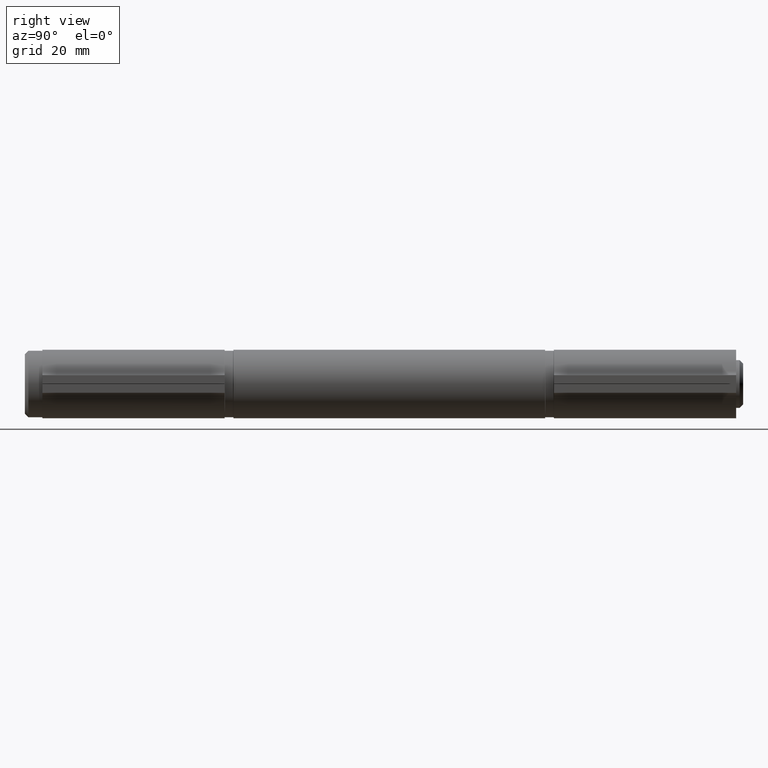
[diagram: clean part render]
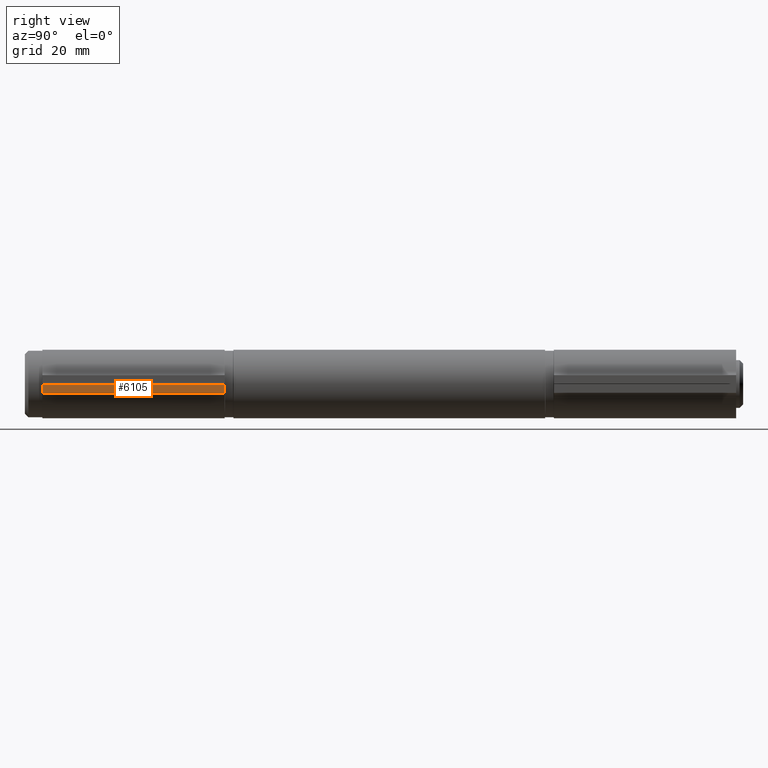
[diagram: same view with one face highlighted and labeled with its STEP entity id]
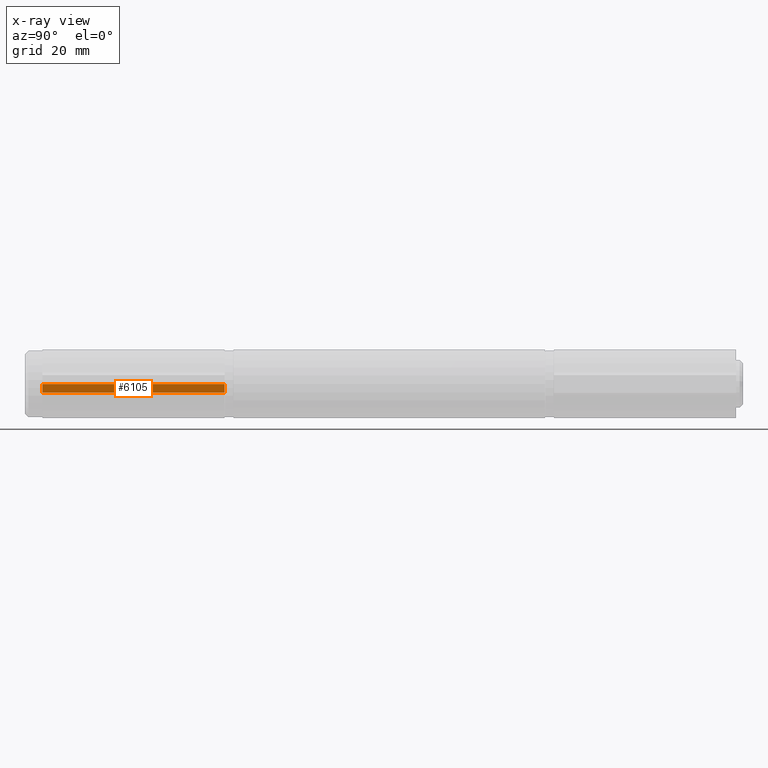
[diagram: x-ray of the same camera — body ghosted, the highlighted face saturated]
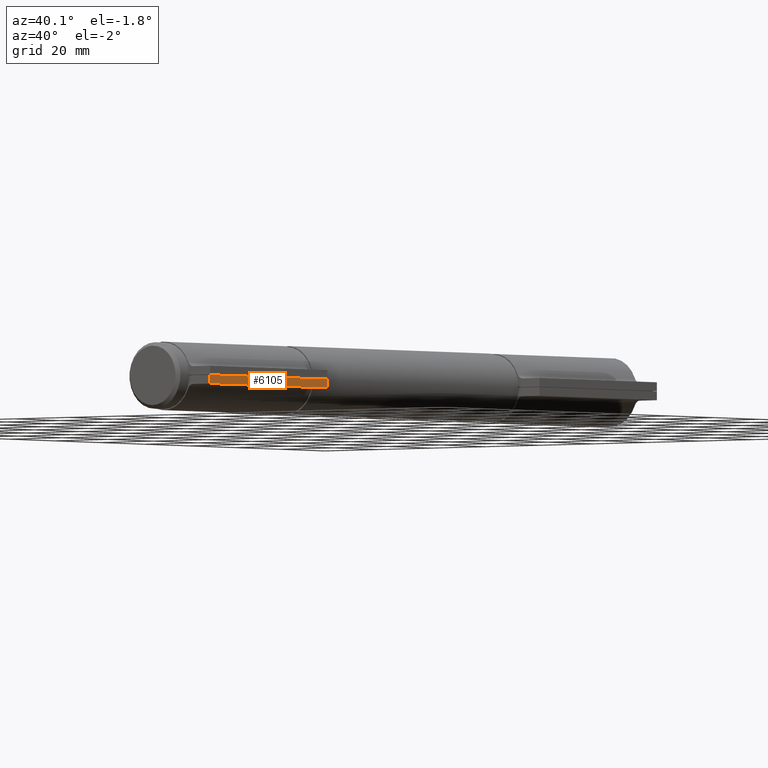
[diagram: same view with one face highlighted and labeled with its STEP entity id]
A machine part, right view. The second image highlights one B-rep face of the part: STEP entity #6105.
The next image is the same camera in x-ray: the body ghosted, the highlighted face saturated — about 0% of this face is hidden behind the body in this view.
A second angle (auxiliary view) of the same face is appended — the face is thin or edge-on in the first view.
In plain terms, the highlighted planar face has unit normal (-1, 0, 0).
Its self-contained STEP definition (entity closure, byte-faithful):
#819 = CARTESIAN_POINT ( 'NONE',  ( -2.550000000000020250, 25.99999999999999645, -17.20000000000015916 ) ) ;
#1196 = LINE ( 'NONE', #8332, #11645 ) ;
#1366 = LINE ( 'NONE', #2697, #10156 ) ;
#1611 = FACE_OUTER_BOUND ( 'NONE', #4665, .T. ) ;
#1700 = DIRECTION ( 'NONE',  ( 0.000000000000000000, -1.000000000000000000, 0.000000000000000000 ) ) ;
#2418 = CARTESIAN_POINT ( 'NONE',  ( -0.05000000000000074524, 25.99999999999999645, -17.20000000000015916 ) ) ;
#2552 = PLANE ( 'NONE',  #5717 ) ;
#2683 = ORIENTED_EDGE ( 'NONE', *, *, #2820, .F. ) ;
#2697 = CARTESIAN_POINT ( 'NONE',  ( -2.550000000000020250, 25.99999999999999645, -17.20000000000015916 ) ) ;
#2820 = EDGE_CURVE ( 'NONE', #7832, #7046, #1366, .T. ) ;
#3487 = CARTESIAN_POINT ( 'NONE',  ( -2.550000000000020250, 25.99999999999999645, -17.20000000000015916 ) ) ;
#3636 = EDGE_CURVE ( 'NONE', #10286, #11829, #1196, .T. ) ;
#3767 = CARTESIAN_POINT ( 'NONE',  ( -2.550000000000020250, 25.99999999999999645, -17.20000000000015916 ) ) ;
#4541 = CARTESIAN_POINT ( 'NONE',  ( -0.05000000000000074524, 25.99999999999999645, -17.20000000000015916 ) ) ;
#4665 = EDGE_LOOP ( 'NONE', ( #7957, #5675, #2683, #5916 ) ) ;
#5675 = ORIENTED_EDGE ( 'NONE', *, *, #12178, .F. ) ;
#5717 = AXIS2_PLACEMENT_3D ( 'NONE', #3487, #8282, #12102 ) ;
#5916 = ORIENTED_EDGE ( 'NONE', *, *, #8567, .T. ) ;
#6105 = ADVANCED_FACE ( 'NONE', ( #1611 ), #2552, .F. ) ;
#6495 = CARTESIAN_POINT ( 'NONE',  ( -2.550000000000020250, -25.99999999999999645, -17.20000000000015916 ) ) ;
#6555 = DIRECTION ( 'NONE',  ( -1.000000000000000000, 0.000000000000000000, 0.000000000000000000 ) ) ;
#6650 = DIRECTION ( 'NONE',  ( 0.000000000000000000, -1.000000000000000000, 0.000000000000000000 ) ) ;
#7046 = VERTEX_POINT ( 'NONE', #3767 ) ;
#7832 = VERTEX_POINT ( 'NONE', #2418 ) ;
#7957 = ORIENTED_EDGE ( 'NONE', *, *, #3636, .T. ) ;
#8282 = DIRECTION ( 'NONE',  ( 0.000000000000000000, 0.000000000000000000, 1.000000000000000000 ) ) ;
#8332 = CARTESIAN_POINT ( 'NONE',  ( -2.550000000000020250, -25.99999999999999645, -17.20000000000015916 ) ) ;
#8567 = EDGE_CURVE ( 'NONE', #7832, #10286, #11280, .T. ) ;
#8607 = LINE ( 'NONE', #819, #9233 ) ;
#9019 = VECTOR ( 'NONE', #1700, 1000.000000000000000 ) ;
#9233 = VECTOR ( 'NONE', #6650, 1000.000000000000000 ) ;
#10156 = VECTOR ( 'NONE', #11523, 1000.000000000000000 ) ;
#10286 = VERTEX_POINT ( 'NONE', #12250 ) ;
#11280 = LINE ( 'NONE', #4541, #9019 ) ;
#11523 = DIRECTION ( 'NONE',  ( -1.000000000000000000, 0.000000000000000000, 0.000000000000000000 ) ) ;
#11645 = VECTOR ( 'NONE', #6555, 1000.000000000000000 ) ;
#11829 = VERTEX_POINT ( 'NONE', #6495 ) ;
#12102 = DIRECTION ( 'NONE',  ( 1.000000000000000000, 0.000000000000000000, 0.000000000000000000 ) ) ;
#12178 = EDGE_CURVE ( 'NONE', #7046, #11829, #8607, .T. ) ;
#12250 = CARTESIAN_POINT ( 'NONE',  ( -0.05000000000000074524, -25.99999999999999645, -17.20000000000015916 ) ) ;